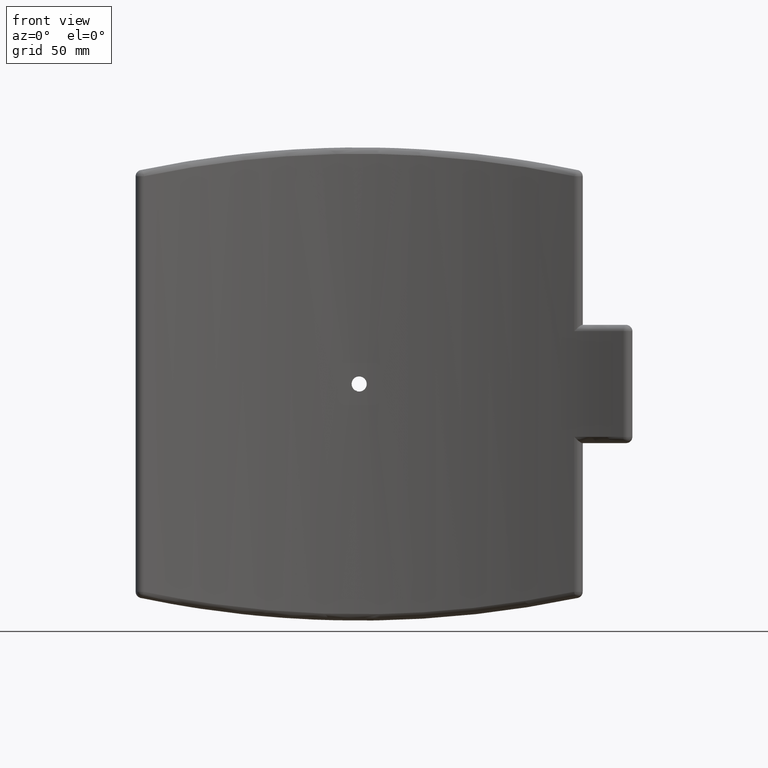
[diagram: clean part render]
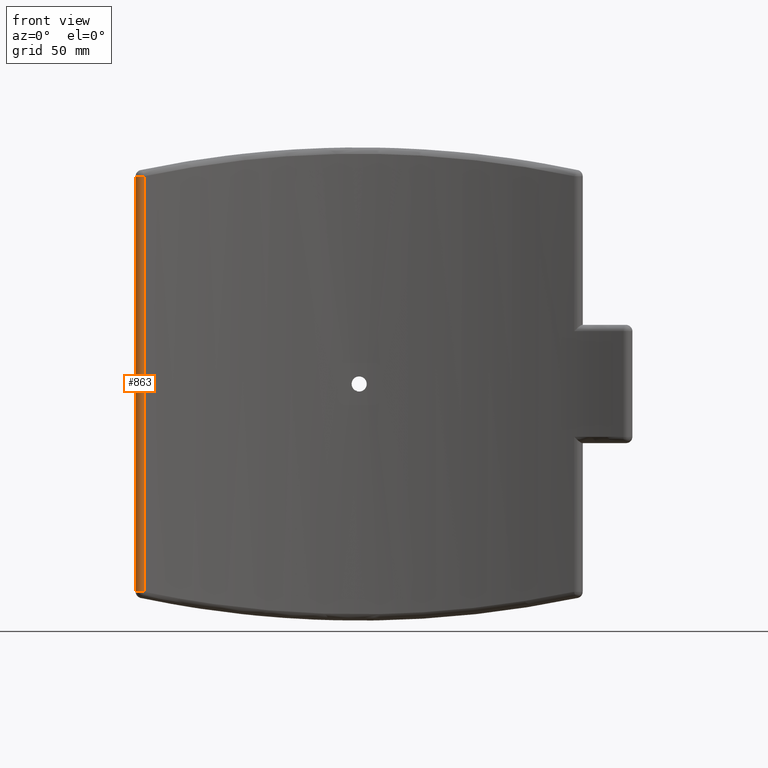
[diagram: same view with one face highlighted and labeled with its STEP entity id]
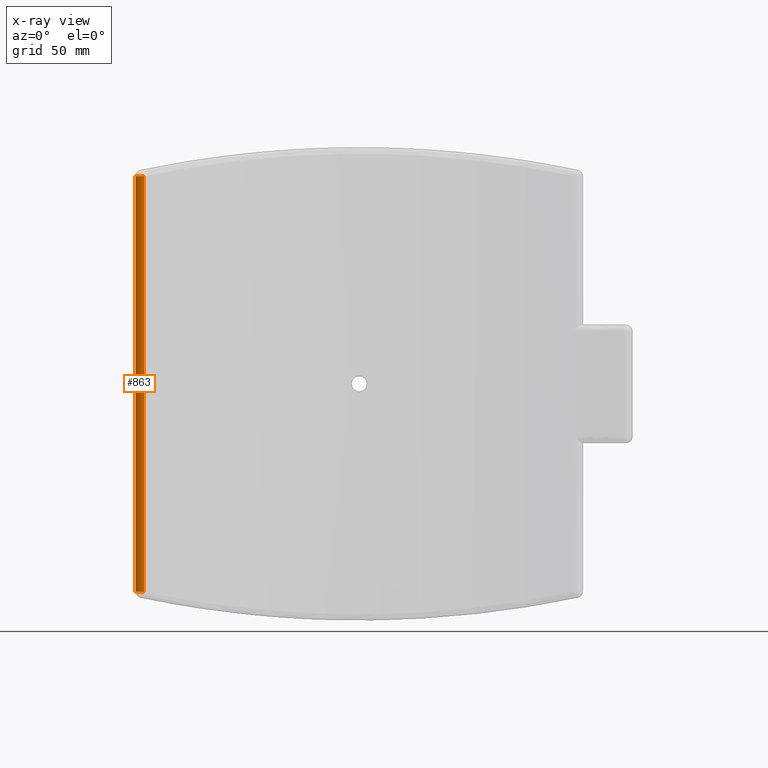
[diagram: x-ray of the same camera — body ghosted, the highlighted face saturated]
A machine part, front view. The second image highlights one B-rep face of the part: STEP entity #863.
The next image is the same camera in x-ray: the body ghosted, the highlighted face saturated — about 0% of this face is hidden behind the body in this view.
In plain terms, the highlighted cylindrical surface (edge-blend (fillet) strip) has radius 4 mm, axis along (0, 0, 1).
Its self-contained STEP definition (entity closure, byte-faithful):
#47=LINE('',#2085,#77);
#48=LINE('',#2086,#78);
#77=VECTOR('',#1232,263.515226148028);
#78=VECTOR('',#1233,263.515226148029);
#133=CYLINDRICAL_SURFACE('',#985,4.);
#226=FACE_OUTER_BOUND('',#313,.T.);
#313=EDGE_LOOP('',(#724,#725,#726,#727));
#366=CIRCLE('',#943,4.00000000000004);
#377=CIRCLE('',#960,4.00000000000002);
#438=VERTEX_POINT('',#1863);
#440=VERTEX_POINT('',#1866);
#448=VERTEX_POINT('',#1893);
#449=VERTEX_POINT('',#1894);
#516=EDGE_CURVE('',#440,#438,#366,.F.);
#529=EDGE_CURVE('',#448,#449,#377,.F.);
#560=EDGE_CURVE('',#449,#440,#47,.T.);
#561=EDGE_CURVE('',#438,#448,#48,.T.);
#724=ORIENTED_EDGE('',*,*,#529,.T.);
#725=ORIENTED_EDGE('',*,*,#560,.T.);
#726=ORIENTED_EDGE('',*,*,#516,.T.);
#727=ORIENTED_EDGE('',*,*,#561,.T.);
#863=ADVANCED_FACE('',(#226),#133,.T.);
#943=AXIS2_PLACEMENT_3D('',#1867,#1133,#1134);
#960=AXIS2_PLACEMENT_3D('',#1895,#1169,#1170);
#985=AXIS2_PLACEMENT_3D('',#2084,#1230,#1231);
#1133=DIRECTION('center_axis',(0.,2.83438322112017E-14,-1.));
#1134=DIRECTION('ref_axis',(-1.,0.,0.));
#1169=DIRECTION('center_axis',(-2.22044604925029E-14,-8.05355381001011E-15,
1.));
#1170=DIRECTION('ref_axis',(0.340965346534644,-0.940075865269665,0.));
#1230=DIRECTION('center_axis',(0.,0.,1.));
#1231=DIRECTION('ref_axis',(-0.574035997767287,-0.818830063729535,0.));
#1232=DIRECTION('',(0.,0.,-1.));
#1233=DIRECTION('',(0.,0.,1.));
#1863=CARTESIAN_POINT('',(-136.386138613858,376.030346107866,-131.757613074014));
#1866=CARTESIAN_POINT('',(-141.749999999997,379.790649568945,-131.757613074014));
#1867=CARTESIAN_POINT('Origin',(-137.749999999996,379.790649568945,-131.757613074014));
#1893=CARTESIAN_POINT('',(-136.386138613858,376.030346107866,131.757613074014));
#1894=CARTESIAN_POINT('',(-141.749999999997,379.790649568945,131.757613074014));
#1895=CARTESIAN_POINT('Origin',(-137.749999999996,379.790649568945,131.757613074014));
#2084=CARTESIAN_POINT('Origin',(-137.749999999996,379.790649568945,0.));
#2085=CARTESIAN_POINT('',(-141.749999999997,379.790649568945,0.));
#2086=CARTESIAN_POINT('',(-136.386138613858,376.030346107866,0.));